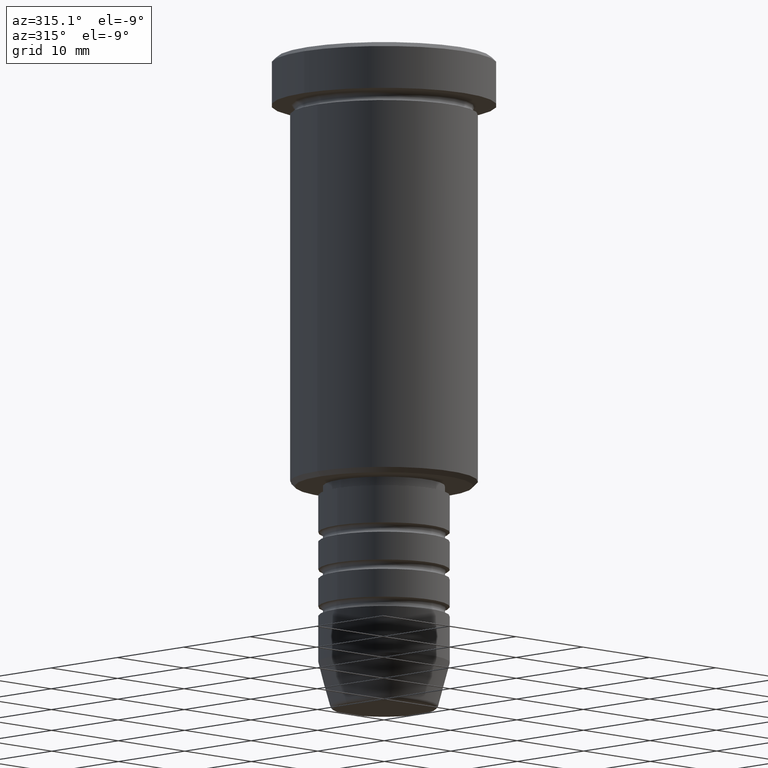
[diagram: clean part render]
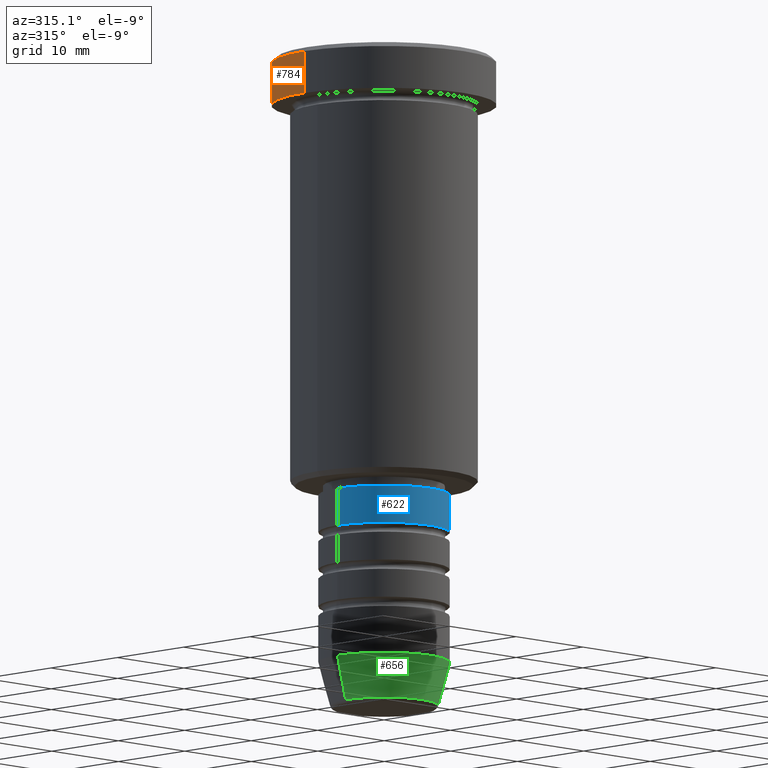
[diagram: same view with three faces highlighted in distinct colors, each labeled with its STEP entity id]
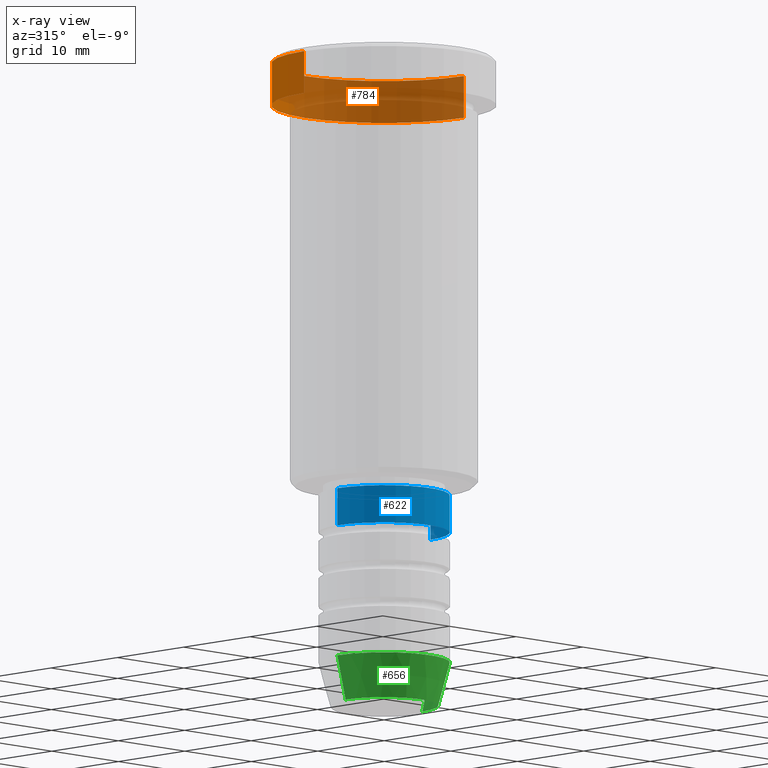
[diagram: x-ray of the same camera — body ghosted, the three highlighted faces saturated]
A machine part, auxiliary view with three faces highlighted in distinct colors.
The next image is the same camera in x-ray (body ghosted, the three faces saturated) — at least one of them is partly hidden behind the body in this view.
Their STEP definitions:

[orange] entity #784 — the highlighted cylindrical surface (partial cylindrical patch) has radius 12 mm, axis along (-0, -0, 1).
#24 = ORIENTED_EDGE ( 'NONE', *, *, #894, .T. ) ;
#28 = VERTEX_POINT ( 'NONE', #438 ) ;
#132 = VERTEX_POINT ( 'NONE', #1149 ) ;
#151 = EDGE_CURVE ( 'NONE', #132, #697, #698, .T. ) ;
#163 = DIRECTION ( 'NONE',  ( 1.000000000000000000, 0.000000000000000000, 0.000000000000000000 ) ) ;
#187 = VERTEX_POINT ( 'NONE', #770 ) ;
#205 = ORIENTED_EDGE ( 'NONE', *, *, #1017, .T. ) ;
#224 = EDGE_LOOP ( 'NONE', ( #205, #24, #869, #581 ) ) ;
#241 = DIRECTION ( 'NONE',  ( 1.000000000000000000, 0.000000000000000000, 0.000000000000000000 ) ) ;
#308 = DIRECTION ( 'NONE',  ( 1.000000000000000000, 0.000000000000000000, 0.000000000000000000 ) ) ;
#318 = CIRCLE ( 'NONE', #971, 12.00000000000000000 ) ;
#321 = CARTESIAN_POINT ( 'NONE',  ( 12.00000000000000000, 0.000000000000000000, 0.000000000000000000 ) ) ;
#330 = CARTESIAN_POINT ( 'NONE',  ( 0.000000000000000000, 0.000000000000000000, 0.000000000000000000 ) ) ;
#438 = CARTESIAN_POINT ( 'NONE',  ( -12.00000000000000000, 1.469576158976823947E-15, -5.000000000000000000 ) ) ;
#518 = LINE ( 'NONE', #321, #916 ) ;
#581 = ORIENTED_EDGE ( 'NONE', *, *, #776, .F. ) ;
#640 = VECTOR ( 'NONE', #996, 1000.000000000000000 ) ;
#685 = DIRECTION ( 'NONE',  ( 0.000000000000000000, 0.000000000000000000, -1.000000000000000000 ) ) ;
#686 = DIRECTION ( 'NONE',  ( -0.000000000000000000, -0.000000000000000000, 1.000000000000000000 ) ) ;
#697 = VERTEX_POINT ( 'NONE', #1115 ) ;
#698 = CIRCLE ( 'NONE', #923, 12.00000000000000000 ) ;
#770 = CARTESIAN_POINT ( 'NONE',  ( 12.00000000000000000, 0.000000000000000000, -5.000000000000000000 ) ) ;
#772 = FACE_OUTER_BOUND ( 'NONE', #224, .T. ) ;
#776 = EDGE_CURVE ( 'NONE', #187, #697, #518, .T. ) ;
#779 = AXIS2_PLACEMENT_3D ( 'NONE', #330, #686, #241 ) ;
#784 = ADVANCED_FACE ( 'NONE', ( #772 ), #1150, .T. ) ;
#869 = ORIENTED_EDGE ( 'NONE', *, *, #151, .T. ) ;
#894 = EDGE_CURVE ( 'NONE', #28, #132, #1103, .T. ) ;
#916 = VECTOR ( 'NONE', #1057, 1000.000000000000000 ) ;
#923 = AXIS2_PLACEMENT_3D ( 'NONE', #938, #685, #308 ) ;
#938 = CARTESIAN_POINT ( 'NONE',  ( 0.000000000000000000, 0.000000000000000000, -0.4999999999999917843 ) ) ;
#971 = AXIS2_PLACEMENT_3D ( 'NONE', #1165, #1071, #163 ) ;
#996 = DIRECTION ( 'NONE',  ( -0.000000000000000000, -0.000000000000000000, 1.000000000000000000 ) ) ;
#1017 = EDGE_CURVE ( 'NONE', #187, #28, #318, .T. ) ;
#1057 = DIRECTION ( 'NONE',  ( -0.000000000000000000, -0.000000000000000000, 1.000000000000000000 ) ) ;
#1071 = DIRECTION ( 'NONE',  ( -0.000000000000000000, -0.000000000000000000, 1.000000000000000000 ) ) ;
#1080 = CARTESIAN_POINT ( 'NONE',  ( -12.00000000000000000, 1.469576158976823947E-15, 0.000000000000000000 ) ) ;
#1103 = LINE ( 'NONE', #1080, #640 ) ;
#1115 = CARTESIAN_POINT ( 'NONE',  ( 12.00000000000000000, 0.000000000000000000, -0.4999999999999917843 ) ) ;
#1149 = CARTESIAN_POINT ( 'NONE',  ( -12.00000000000000000, 1.469576158976823947E-15, -0.4999999999999917843 ) ) ;
#1150 = CYLINDRICAL_SURFACE ( 'NONE', #779, 12.00000000000000000 ) ;
#1165 = CARTESIAN_POINT ( 'NONE',  ( 0.000000000000000000, 0.000000000000000000, -5.000000000000000000 ) ) ;

[blue] entity #622 — the highlighted cylindrical surface (partial cylindrical patch) has radius 7 mm, axis along (-0, -0, 1).
#33 = CARTESIAN_POINT ( 'NONE',  ( 7.000000000000000888, 0.000000000000000000, 0.000000000000000000 ) ) ;
#43 = DIRECTION ( 'NONE',  ( -0.000000000000000000, -0.000000000000000000, 1.000000000000000000 ) ) ;
#49 = CARTESIAN_POINT ( 'NONE',  ( 7.000000000000000888, 0.000000000000000000, -51.00000000000000000 ) ) ;
#85 = EDGE_CURVE ( 'NONE', #279, #531, #680, .T. ) ;
#107 = CARTESIAN_POINT ( 'NONE',  ( -7.000000000000000888, 8.572527594031474176E-16, -47.00000000000000000 ) ) ;
#118 = DIRECTION ( 'NONE',  ( 1.000000000000000000, 0.000000000000000000, 0.000000000000000000 ) ) ;
#131 = CARTESIAN_POINT ( 'NONE',  ( 0.000000000000000000, 0.000000000000000000, 0.000000000000000000 ) ) ;
#134 = EDGE_CURVE ( 'NONE', #279, #858, #864, .T. ) ;
#267 = CARTESIAN_POINT ( 'NONE',  ( -7.000000000000000888, 8.572527594031474176E-16, -51.00000000000000000 ) ) ;
#277 = CIRCLE ( 'NONE', #956, 7.000000000000000888 ) ;
#279 = VERTEX_POINT ( 'NONE', #267 ) ;
#325 = VECTOR ( 'NONE', #943, 1000.000000000000000 ) ;
#329 = DIRECTION ( 'NONE',  ( -0.000000000000000000, -0.000000000000000000, 1.000000000000000000 ) ) ;
#345 = ORIENTED_EDGE ( 'NONE', *, *, #85, .F. ) ;
#395 = VECTOR ( 'NONE', #43, 1000.000000000000000 ) ;
#401 = CYLINDRICAL_SURFACE ( 'NONE', #676, 7.000000000000000888 ) ;
#464 = VERTEX_POINT ( 'NONE', #1024 ) ;
#476 = DIRECTION ( 'NONE',  ( 1.000000000000000000, 0.000000000000000000, 0.000000000000000000 ) ) ;
#531 = VERTEX_POINT ( 'NONE', #107 ) ;
#540 = ORIENTED_EDGE ( 'NONE', *, *, #134, .T. ) ;
#554 = AXIS2_PLACEMENT_3D ( 'NONE', #604, #329, #118 ) ;
#566 = CARTESIAN_POINT ( 'NONE',  ( 0.000000000000000000, 0.000000000000000000, -47.00000000000000000 ) ) ;
#592 = DIRECTION ( 'NONE',  ( 1.000000000000000000, 0.000000000000000000, 0.000000000000000000 ) ) ;
#600 = EDGE_CURVE ( 'NONE', #858, #464, #660, .T. ) ;
#604 = CARTESIAN_POINT ( 'NONE',  ( 0.000000000000000000, 0.000000000000000000, -51.00000000000000000 ) ) ;
#622 = ADVANCED_FACE ( 'NONE', ( #757 ), #401, .T. ) ;
#658 = DIRECTION ( 'NONE',  ( -0.000000000000000000, -0.000000000000000000, 1.000000000000000000 ) ) ;
#660 = LINE ( 'NONE', #33, #395 ) ;
#675 = CARTESIAN_POINT ( 'NONE',  ( -7.000000000000000888, 8.572527594031474176E-16, 0.000000000000000000 ) ) ;
#676 = AXIS2_PLACEMENT_3D ( 'NONE', #131, #843, #592 ) ;
#680 = LINE ( 'NONE', #675, #325 ) ;
#750 = ORIENTED_EDGE ( 'NONE', *, *, #1042, .F. ) ;
#757 = FACE_OUTER_BOUND ( 'NONE', #1166, .T. ) ;
#843 = DIRECTION ( 'NONE',  ( -0.000000000000000000, -0.000000000000000000, 1.000000000000000000 ) ) ;
#858 = VERTEX_POINT ( 'NONE', #49 ) ;
#864 = CIRCLE ( 'NONE', #554, 7.000000000000000888 ) ;
#943 = DIRECTION ( 'NONE',  ( -0.000000000000000000, -0.000000000000000000, 1.000000000000000000 ) ) ;
#956 = AXIS2_PLACEMENT_3D ( 'NONE', #566, #658, #476 ) ;
#1024 = CARTESIAN_POINT ( 'NONE',  ( 7.000000000000000888, 0.000000000000000000, -47.00000000000000000 ) ) ;
#1042 = EDGE_CURVE ( 'NONE', #531, #464, #277, .T. ) ;
#1075 = ORIENTED_EDGE ( 'NONE', *, *, #600, .T. ) ;
#1166 = EDGE_LOOP ( 'NONE', ( #345, #540, #1075, #750 ) ) ;

[green] entity #656 — the highlighted conical surface has half-angle 15 deg.
#7 = AXIS2_PLACEMENT_3D ( 'NONE', #663, #289, #19 ) ;
#19 = DIRECTION ( 'NONE',  ( 1.000000000000000000, 0.000000000000000000, 0.000000000000000000 ) ) ;
#115 = FACE_OUTER_BOUND ( 'NONE', #1053, .T. ) ;
#120 = VERTEX_POINT ( 'NONE', #234 ) ;
#154 = CONICAL_SURFACE ( 'NONE', #1054, 7.000000000000000888, 0.2617993877991500740 ) ;
#172 = DIRECTION ( 'NONE',  ( 0.2588190451025213501, 0.000000000000000000, 0.9659258262890680902 ) ) ;
#184 = CARTESIAN_POINT ( 'NONE',  ( 5.759553456999433330, 0.000000000000000000, -69.62940952255127058 ) ) ;
#198 = AXIS2_PLACEMENT_3D ( 'NONE', #496, #396, #848 ) ;
#234 = CARTESIAN_POINT ( 'NONE',  ( 7.000000000000000888, 0.000000000000000000, -65.00000000000000000 ) ) ;
#275 = CIRCLE ( 'NONE', #198, 7.000000000000000888 ) ;
#289 = DIRECTION ( 'NONE',  ( -0.000000000000000000, -0.000000000000000000, 1.000000000000000000 ) ) ;
#296 = CIRCLE ( 'NONE', #7, 5.759553456999433330 ) ;
#344 = CARTESIAN_POINT ( 'NONE',  ( -7.000000000000000888, 8.572527594031474176E-16, -65.00000000000000000 ) ) ;
#396 = DIRECTION ( 'NONE',  ( -0.000000000000000000, -0.000000000000000000, 1.000000000000000000 ) ) ;
#442 = CARTESIAN_POINT ( 'NONE',  ( -7.000000000000000888, 8.572527594031474176E-16, -65.00000000000000000 ) ) ;
#461 = CARTESIAN_POINT ( 'NONE',  ( 7.000000000000000888, 0.000000000000000000, -65.00000000000000000 ) ) ;
#496 = CARTESIAN_POINT ( 'NONE',  ( 0.000000000000000000, 0.000000000000000000, -65.00000000000000000 ) ) ;
#511 = ORIENTED_EDGE ( 'NONE', *, *, #618, .F. ) ;
#512 = VECTOR ( 'NONE', #172, 1000.000000000000000 ) ;
#568 = DIRECTION ( 'NONE',  ( 1.000000000000000000, 0.000000000000000000, 0.000000000000000000 ) ) ;
#574 = EDGE_CURVE ( 'NONE', #1048, #1174, #296, .T. ) ;
#618 = EDGE_CURVE ( 'NONE', #972, #120, #275, .T. ) ;
#656 = ADVANCED_FACE ( 'NONE', ( #115 ), #154, .T. ) ;
#663 = CARTESIAN_POINT ( 'NONE',  ( 0.000000000000000000, 0.000000000000000000, -69.62940952255127058 ) ) ;
#671 = DIRECTION ( 'NONE',  ( -0.000000000000000000, -0.000000000000000000, 1.000000000000000000 ) ) ;
#736 = ORIENTED_EDGE ( 'NONE', *, *, #574, .T. ) ;
#754 = CARTESIAN_POINT ( 'NONE',  ( 0.000000000000000000, 0.000000000000000000, -65.00000000000000000 ) ) ;
#797 = DIRECTION ( 'NONE',  ( -0.2588190451025213501, 3.169619151431772337E-17, 0.9659258262890680902 ) ) ;
#848 = DIRECTION ( 'NONE',  ( 1.000000000000000000, 0.000000000000000000, 0.000000000000000000 ) ) ;
#951 = EDGE_CURVE ( 'NONE', #1048, #972, #983, .T. ) ;
#962 = EDGE_CURVE ( 'NONE', #1174, #120, #1006, .T. ) ;
#972 = VERTEX_POINT ( 'NONE', #344 ) ;
#983 = LINE ( 'NONE', #442, #1036 ) ;
#1003 = ORIENTED_EDGE ( 'NONE', *, *, #962, .T. ) ;
#1006 = LINE ( 'NONE', #461, #512 ) ;
#1036 = VECTOR ( 'NONE', #797, 1000.000000000000000 ) ;
#1048 = VERTEX_POINT ( 'NONE', #1114 ) ;
#1053 = EDGE_LOOP ( 'NONE', ( #1131, #736, #1003, #511 ) ) ;
#1054 = AXIS2_PLACEMENT_3D ( 'NONE', #754, #671, #568 ) ;
#1114 = CARTESIAN_POINT ( 'NONE',  ( -5.759553456999433330, 7.812973149831950787E-16, -69.62940952255127058 ) ) ;
#1131 = ORIENTED_EDGE ( 'NONE', *, *, #951, .F. ) ;
#1174 = VERTEX_POINT ( 'NONE', #184 ) ;